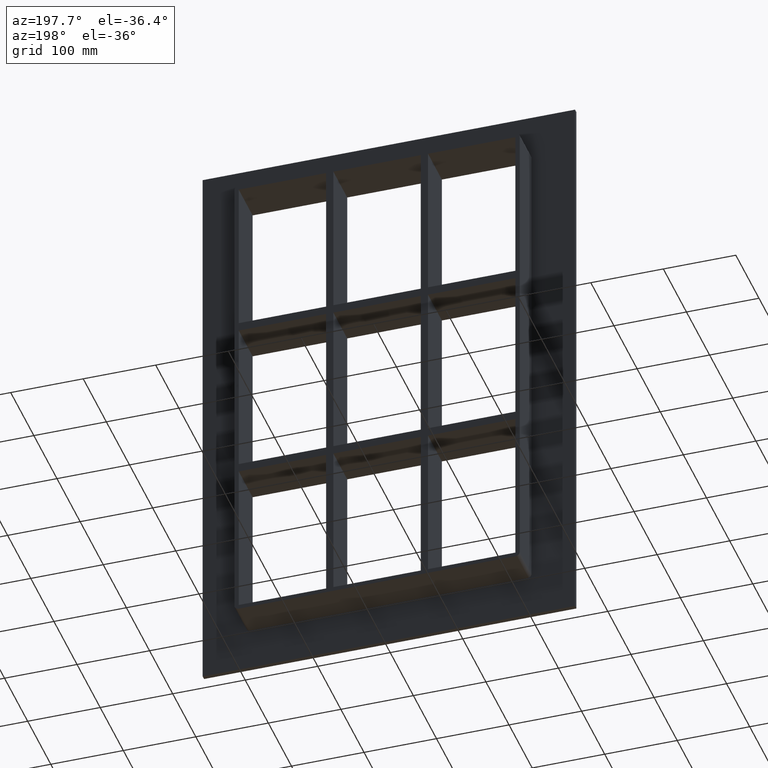
[diagram: clean part render]
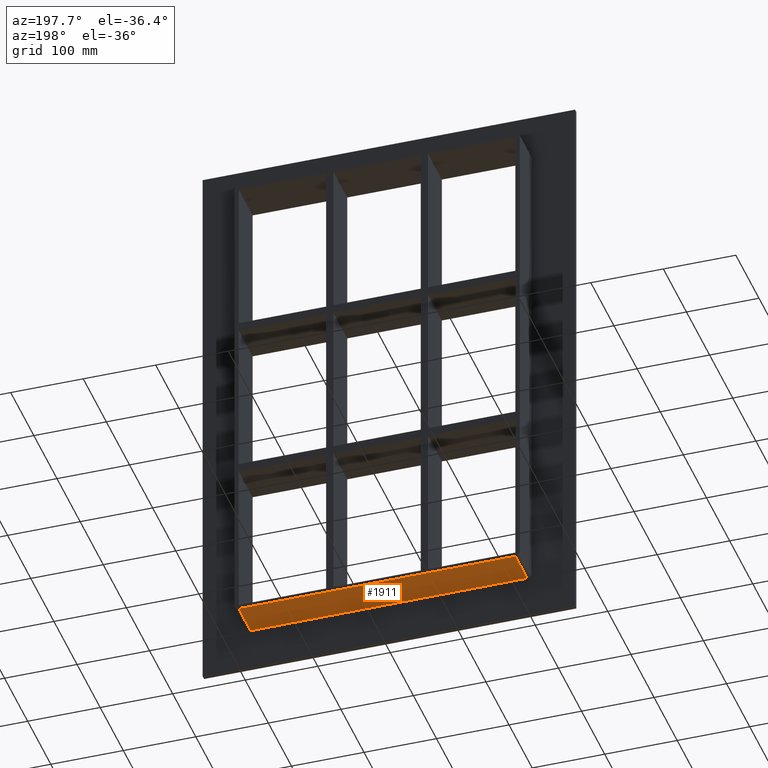
[diagram: same view with one face highlighted and labeled with its STEP entity id]
A machine part, auxiliary view. The second image highlights one B-rep face of the part: STEP entity #1911.
In plain terms, the highlighted planar face has unit normal (0, 0, -1).
Its self-contained STEP definition (entity closure, byte-faithful):
#561=CARTESIAN_POINT('',(190.75000000000003,57.0,-345.0));
#562=VERTEX_POINT('',#561);
#572=CARTESIAN_POINT('',(-190.75000000000003,57.0,-345.0));
#573=VERTEX_POINT('',#572);
#574=CARTESIAN_POINT('',(190.75000000000006,57.0,-345.0));
#575=DIRECTION('',(-1.0,0.0,0.0));
#576=VECTOR('',#575,381.50000000000006);
#577=LINE('',#574,#576);
#578=EDGE_CURVE('',#562,#573,#577,.T.);
#1471=CARTESIAN_POINT('',(-190.75000000000003,6.000000000000001,-345.0));
#1472=VERTEX_POINT('',#1471);
#1482=CARTESIAN_POINT('',(190.75000000000003,6.000000000000001,-345.0));
#1483=VERTEX_POINT('',#1482);
#1484=CARTESIAN_POINT('',(190.75000000000003,6.000000000000001,-345.0));
#1485=DIRECTION('',(-1.0,0.0,0.0));
#1486=VECTOR('',#1485,381.50000000000006);
#1487=LINE('',#1484,#1486);
#1488=EDGE_CURVE('',#1483,#1472,#1487,.T.);
#1850=CARTESIAN_POINT('',(190.75000000000003,6.000000000000001,-345.0));
#1851=DIRECTION('',(0.0,1.0,0.0));
#1852=VECTOR('',#1851,51.0);
#1853=LINE('',#1850,#1852);
#1854=EDGE_CURVE('',#1483,#562,#1853,.T.);
#1895=CARTESIAN_POINT('',(196.75000000000006,0.0,-345.0));
#1896=DIRECTION('',(0.0,0.0,-1.0));
#1897=DIRECTION('',(-1.0,0.0,0.0));
#1898=AXIS2_PLACEMENT_3D('',#1895,#1896,#1897);
#1899=PLANE('',#1898);
#1900=ORIENTED_EDGE('',*,*,#1488,.T.);
#1901=CARTESIAN_POINT('',(-190.75000000000003,57.0,-345.0));
#1902=DIRECTION('',(0.0,-1.0,0.0));
#1903=VECTOR('',#1902,51.0);
#1904=LINE('',#1901,#1903);
#1905=EDGE_CURVE('',#573,#1472,#1904,.T.);
#1906=ORIENTED_EDGE('',*,*,#1905,.F.);
#1907=ORIENTED_EDGE('',*,*,#578,.F.);
#1908=ORIENTED_EDGE('',*,*,#1854,.F.);
#1909=EDGE_LOOP('',(#1900,#1906,#1907,#1908));
#1910=FACE_OUTER_BOUND('',#1909,.T.);
#1911=ADVANCED_FACE('',(#1910),#1899,.T.);